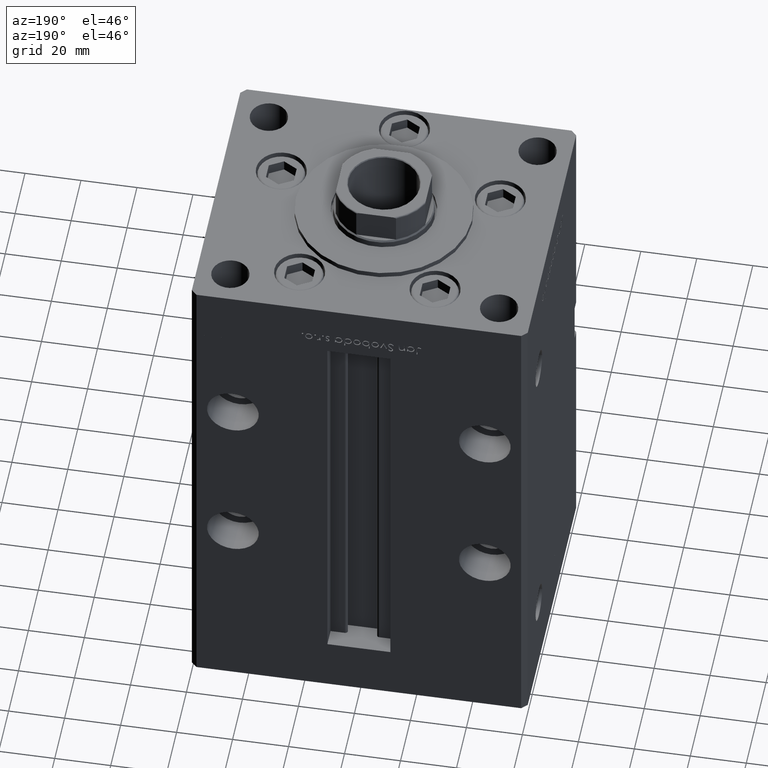
[diagram: clean part render]
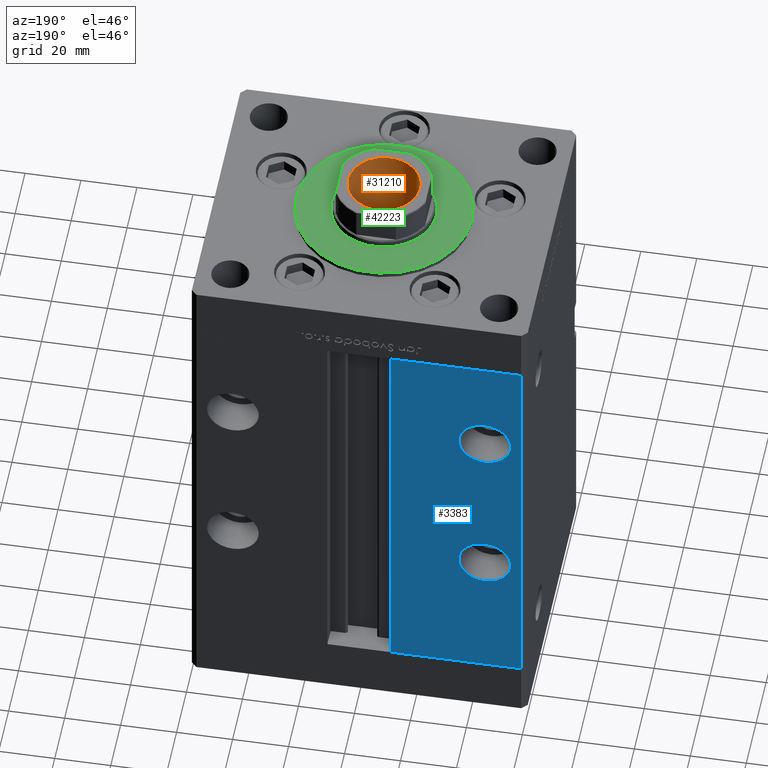
[diagram: same view with three faces highlighted in distinct colors, each labeled with its STEP entity id]
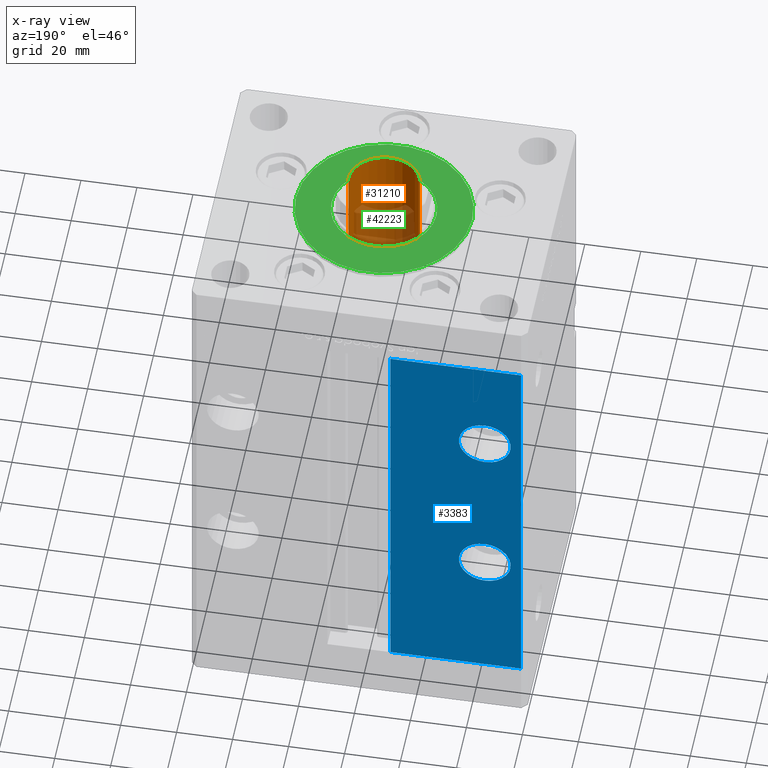
[diagram: x-ray of the same camera — body ghosted, the three highlighted faces saturated]
A machine part, auxiliary view with three faces highlighted in distinct colors.
The next image is the same camera in x-ray (body ghosted, the three faces saturated) — at least one of them is partly hidden behind the body in this view.
Their STEP definitions:

[orange] entity #31210 — the highlighted cylindrical surface (edge-blend (fillet) strip) has radius 12.75 mm, axis along (0, 0, 1).
#3804 = DIRECTION ( 'NONE',  ( -0.000000000000000000, -0.000000000000000000, 1.000000000000000000 ) ) ;
#7066 = VERTEX_POINT ( 'NONE', #27564 ) ;
#7113 = AXIS2_PLACEMENT_3D ( 'NONE', #18196, #35351, #18462 ) ;
#8938 = EDGE_CURVE ( 'NONE', #38517, #29832, #38066, .T. ) ;
#9149 = DIRECTION ( 'NONE',  ( -0.000000000000000000, -0.000000000000000000, 1.000000000000000000 ) ) ;
#10239 = DIRECTION ( 'NONE',  ( 1.000000000000000000, 0.000000000000000000, 0.000000000000000000 ) ) ;
#10362 = VERTEX_POINT ( 'NONE', #35427 ) ;
#13350 = EDGE_CURVE ( 'NONE', #29832, #7066, #30607, .T. ) ;
#13519 = VECTOR ( 'NONE', #50778, 1000.000000000000000 ) ;
#17202 = CARTESIAN_POINT ( 'NONE',  ( 12.74999999999999467, 0.000000000000000000, 169.2500000000000000 ) ) ;
#18196 = CARTESIAN_POINT ( 'NONE',  ( 0.000000000000000000, 0.000000000000000000, 124.2500000000000142 ) ) ;
#18462 = DIRECTION ( 'NONE',  ( 1.000000000000000000, 0.000000000000000000, 0.000000000000000000 ) ) ;
#20471 = ORIENTED_EDGE ( 'NONE', *, *, #20627, .T. ) ;
#20627 = EDGE_CURVE ( 'NONE', #10362, #7066, #30604, .T. ) ;
#20699 = CARTESIAN_POINT ( 'NONE',  ( 12.74999999999999112, 0.000000000000000000, 124.2500000000000142 ) ) ;
#21179 = AXIS2_PLACEMENT_3D ( 'NONE', #47803, #51557, #10239 ) ;
#21378 = EDGE_LOOP ( 'NONE', ( #50435, #30696, #20471, #30135 ) ) ;
#21386 = EDGE_CURVE ( 'NONE', #38517, #10362, #45959, .T. ) ;
#24400 = VECTOR ( 'NONE', #9149, 1000.000000000000000 ) ;
#24998 = CYLINDRICAL_SURFACE ( 'NONE', #34423, 12.74999999999999467 ) ;
#25293 = CARTESIAN_POINT ( 'NONE',  ( -12.74999999999999112, 1.561424668912874125E-15, 124.2500000000000142 ) ) ;
#27564 = CARTESIAN_POINT ( 'NONE',  ( 12.74999999999999467, 0.000000000000000000, 168.9499999999999602 ) ) ;
#29832 = VERTEX_POINT ( 'NONE', #20699 ) ;
#30135 = ORIENTED_EDGE ( 'NONE', *, *, #13350, .F. ) ;
#30604 = CIRCLE ( 'NONE', #21179, 12.74999999999999467 ) ;
#30607 = LINE ( 'NONE', #17202, #24400 ) ;
#30696 = ORIENTED_EDGE ( 'NONE', *, *, #21386, .T. ) ;
#31210 = ADVANCED_FACE ( 'NONE', ( #36539 ), #24998, .F. ) ;
#32792 = CARTESIAN_POINT ( 'NONE',  ( 0.000000000000000000, 0.000000000000000000, 169.2500000000000000 ) ) ;
#33885 = CARTESIAN_POINT ( 'NONE',  ( -12.74999999999999467, 1.561424668912874519E-15, 169.2500000000000000 ) ) ;
#34423 = AXIS2_PLACEMENT_3D ( 'NONE', #32792, #3804, #40566 ) ;
#35351 = DIRECTION ( 'NONE',  ( -0.000000000000000000, -0.000000000000000000, 1.000000000000000000 ) ) ;
#35427 = CARTESIAN_POINT ( 'NONE',  ( -12.74999999999999467, 1.561424668912874519E-15, 168.9499999999999602 ) ) ;
#36539 = FACE_OUTER_BOUND ( 'NONE', #21378, .T. ) ;
#38066 = CIRCLE ( 'NONE', #7113, 12.74999999999999112 ) ;
#38517 = VERTEX_POINT ( 'NONE', #25293 ) ;
#40566 = DIRECTION ( 'NONE',  ( 1.000000000000000000, 0.000000000000000000, 0.000000000000000000 ) ) ;
#45959 = LINE ( 'NONE', #33885, #13519 ) ;
#47803 = CARTESIAN_POINT ( 'NONE',  ( 0.000000000000000000, 0.000000000000000000, 168.9499999999999602 ) ) ;
#50435 = ORIENTED_EDGE ( 'NONE', *, *, #8938, .F. ) ;
#50778 = DIRECTION ( 'NONE',  ( -0.000000000000000000, -0.000000000000000000, 1.000000000000000000 ) ) ;
#51557 = DIRECTION ( 'NONE',  ( 0.000000000000000000, 0.000000000000000000, 1.000000000000000000 ) ) ;

[blue] entity #3383 — the highlighted planar face has unit normal (0, -1, 0).
#131 = AXIS2_PLACEMENT_3D ( 'NONE', #20976, #49944, #8086 ) ;
#2008 = VECTOR ( 'NONE', #45275, 1000.000000000000000 ) ;
#3383 = ADVANCED_FACE ( 'NONE', ( #9535, #8747, #37985 ), #46298, .F. ) ;
#3960 = ORIENTED_EDGE ( 'NONE', *, *, #38135, .F. ) ;
#4118 = CARTESIAN_POINT ( 'NONE',  ( -11.24999999999999822, 51.00000000000000711, 148.5000000000000000 ) ) ;
#4275 = ORIENTED_EDGE ( 'NONE', *, *, #10828, .T. ) ;
#4709 = DIRECTION ( 'NONE',  ( 0.000000000000000000, 0.000000000000000000, 1.000000000000000000 ) ) ;
#4752 = CIRCLE ( 'NONE', #46746, 9.250000000000001776 ) ;
#4805 = VERTEX_POINT ( 'NONE', #17704 ) ;
#5185 = DIRECTION ( 'NONE',  ( -0.000000000000000000, -0.000000000000000000, -1.000000000000000000 ) ) ;
#6317 = CIRCLE ( 'NONE', #42298, 9.249999999999994671 ) ;
#7959 = LINE ( 'NONE', #52791, #24152 ) ;
#8086 = DIRECTION ( 'NONE',  ( 0.000000000000000000, 0.000000000000000000, 1.000000000000000000 ) ) ;
#8747 = FACE_BOUND ( 'NONE', #14917, .T. ) ;
#9197 = EDGE_CURVE ( 'NONE', #23352, #4805, #17538, .T. ) ;
#9289 = ORIENTED_EDGE ( 'NONE', *, *, #42871, .F. ) ;
#9297 = LINE ( 'NONE', #29434, #2008 ) ;
#9535 = FACE_BOUND ( 'NONE', #38469, .T. ) ;
#10828 = EDGE_CURVE ( 'NONE', #22260, #46263, #9297, .T. ) ;
#13514 = DIRECTION ( 'NONE',  ( -1.000000000000000000, 0.000000000000000000, 0.000000000000000000 ) ) ;
#13842 = CIRCLE ( 'NONE', #131, 9.250000000000001776 ) ;
#14917 = EDGE_LOOP ( 'NONE', ( #9289, #26005 ) ) ;
#15870 = CARTESIAN_POINT ( 'NONE',  ( -45.00000000000000000, 51.00000000000000711, 60.75000000000000000 ) ) ;
#17538 = LINE ( 'NONE', #33908, #50062 ) ;
#17704 = CARTESIAN_POINT ( 'NONE',  ( -57.99999999999999289, 51.00000000000000711, 0.000000000000000000 ) ) ;
#20976 = CARTESIAN_POINT ( 'NONE',  ( -45.00000000000000000, 51.00000000000000711, 51.50000000000000000 ) ) ;
#21619 = DIRECTION ( 'NONE',  ( 0.000000000000000000, -1.000000000000000000, 0.000000000000000000 ) ) ;
#22019 = DIRECTION ( 'NONE',  ( 0.000000000000000000, 1.000000000000000000, -0.000000000000000000 ) ) ;
#22260 = VERTEX_POINT ( 'NONE', #33176 ) ;
#23275 = CARTESIAN_POINT ( 'NONE',  ( -45.00000000000000000, 51.00000000000000711, 120.7500000000000000 ) ) ;
#23352 = VERTEX_POINT ( 'NONE', #26800 ) ;
#23361 = VERTEX_POINT ( 'NONE', #24365 ) ;
#23403 = VECTOR ( 'NONE', #5185, 1000.000000000000000 ) ;
#23580 = AXIS2_PLACEMENT_3D ( 'NONE', #43709, #43171, #47995 ) ;
#24152 = VECTOR ( 'NONE', #40704, 1000.000000000000000 ) ;
#24365 = CARTESIAN_POINT ( 'NONE',  ( -45.00000000000000000, 51.00000000000000711, 42.24999999999999289 ) ) ;
#26005 = ORIENTED_EDGE ( 'NONE', *, *, #31227, .F. ) ;
#26573 = DIRECTION ( 'NONE',  ( 0.000000000000000000, 0.000000000000000000, -1.000000000000000000 ) ) ;
#26800 = CARTESIAN_POINT ( 'NONE',  ( -11.24999999999999822, 51.00000000000000711, 0.000000000000000000 ) ) ;
#28125 = EDGE_LOOP ( 'NONE', ( #4275, #31020, #44228, #51668 ) ) ;
#29154 = DIRECTION ( 'NONE',  ( 0.000000000000000000, -0.000000000000000000, -1.000000000000000000 ) ) ;
#29434 = CARTESIAN_POINT ( 'NONE',  ( -11.24999999999999822, 51.00000000000000711, 148.5000000000000000 ) ) ;
#29521 = VERTEX_POINT ( 'NONE', #23275 ) ;
#30939 = EDGE_CURVE ( 'NONE', #22260, #4805, #41700, .T. ) ;
#31020 = ORIENTED_EDGE ( 'NONE', *, *, #31752, .F. ) ;
#31227 = EDGE_CURVE ( 'NONE', #23361, #37013, #13842, .T. ) ;
#31296 = VERTEX_POINT ( 'NONE', #34109 ) ;
#31752 = EDGE_CURVE ( 'NONE', #23352, #46263, #7959, .T. ) ;
#32164 = CIRCLE ( 'NONE', #23580, 9.249999999999994671 ) ;
#33176 = CARTESIAN_POINT ( 'NONE',  ( -57.99999999999999289, 51.00000000000000711, 148.5000000000000000 ) ) ;
#33818 = ORIENTED_EDGE ( 'NONE', *, *, #41586, .F. ) ;
#33908 = CARTESIAN_POINT ( 'NONE',  ( -11.24999999999999822, 51.00000000000000711, 0.000000000000000000 ) ) ;
#34109 = CARTESIAN_POINT ( 'NONE',  ( -45.00000000000000000, 51.00000000000000711, 102.2500000000000142 ) ) ;
#37013 = VERTEX_POINT ( 'NONE', #15870 ) ;
#37985 = FACE_OUTER_BOUND ( 'NONE', #28125, .T. ) ;
#38135 = EDGE_CURVE ( 'NONE', #29521, #31296, #6317, .T. ) ;
#38469 = EDGE_LOOP ( 'NONE', ( #3960, #33818 ) ) ;
#40479 = AXIS2_PLACEMENT_3D ( 'NONE', #42275, #21619, #29154 ) ;
#40704 = DIRECTION ( 'NONE',  ( -0.000000000000000000, -0.000000000000000000, 1.000000000000000000 ) ) ;
#41586 = EDGE_CURVE ( 'NONE', #31296, #29521, #32164, .T. ) ;
#41700 = LINE ( 'NONE', #48945, #23403 ) ;
#42275 = CARTESIAN_POINT ( 'NONE',  ( -11.24999999999999822, 51.00000000000000711, 148.5000000000000000 ) ) ;
#42298 = AXIS2_PLACEMENT_3D ( 'NONE', #50721, #22019, #26573 ) ;
#42871 = EDGE_CURVE ( 'NONE', #37013, #23361, #4752, .T. ) ;
#43171 = DIRECTION ( 'NONE',  ( 0.000000000000000000, 1.000000000000000000, -0.000000000000000000 ) ) ;
#43709 = CARTESIAN_POINT ( 'NONE',  ( -45.00000000000000000, 51.00000000000000711, 111.5000000000000000 ) ) ;
#44228 = ORIENTED_EDGE ( 'NONE', *, *, #9197, .T. ) ;
#45275 = DIRECTION ( 'NONE',  ( 1.000000000000000000, 0.000000000000000000, 0.000000000000000000 ) ) ;
#45499 = CARTESIAN_POINT ( 'NONE',  ( -45.00000000000000000, 51.00000000000000711, 51.50000000000000000 ) ) ;
#46263 = VERTEX_POINT ( 'NONE', #4118 ) ;
#46298 = PLANE ( 'NONE',  #40479 ) ;
#46746 = AXIS2_PLACEMENT_3D ( 'NONE', #45499, #50059, #4709 ) ;
#47995 = DIRECTION ( 'NONE',  ( 0.000000000000000000, 0.000000000000000000, -1.000000000000000000 ) ) ;
#48945 = CARTESIAN_POINT ( 'NONE',  ( -57.99999999999999289, 51.00000000000000711, 148.5000000000000000 ) ) ;
#49944 = DIRECTION ( 'NONE',  ( 0.000000000000000000, 1.000000000000000000, 0.000000000000000000 ) ) ;
#50059 = DIRECTION ( 'NONE',  ( 0.000000000000000000, 1.000000000000000000, 0.000000000000000000 ) ) ;
#50062 = VECTOR ( 'NONE', #13514, 1000.000000000000000 ) ;
#50721 = CARTESIAN_POINT ( 'NONE',  ( -45.00000000000000000, 51.00000000000000711, 111.5000000000000000 ) ) ;
#51668 = ORIENTED_EDGE ( 'NONE', *, *, #30939, .F. ) ;
#52791 = CARTESIAN_POINT ( 'NONE',  ( -11.24999999999999822, 51.00000000000000711, 0.000000000000000000 ) ) ;

[green] entity #42223 — the highlighted planar face has unit normal (0, 0, 1).
#30 = EDGE_CURVE ( 'NONE', #38821, #4374, #34395, .T. ) ;
#504 = DIRECTION ( 'NONE',  ( 0.000000000000000000, 0.000000000000000000, 1.000000000000000000 ) ) ;
#517 = CARTESIAN_POINT ( 'NONE',  ( 0.000000000000000000, -6.938893903907228378E-15, 2.000000000000000000 ) ) ;
#2604 = DIRECTION ( 'NONE',  ( 1.000000000000000000, 0.000000000000000000, 0.000000000000000000 ) ) ;
#3052 = VERTEX_POINT ( 'NONE', #19353 ) ;
#4374 = VERTEX_POINT ( 'NONE', #10900 ) ;
#6487 = FACE_OUTER_BOUND ( 'NONE', #49237, .T. ) ;
#7126 = ORIENTED_EDGE ( 'NONE', *, *, #28339, .F. ) ;
#9324 = DIRECTION ( 'NONE',  ( 1.000000000000000000, 0.000000000000000000, 0.000000000000000000 ) ) ;
#10900 = CARTESIAN_POINT ( 'NONE',  ( 31.50000000000000000, -3.081256486593065689E-15, 2.000000000000000000 ) ) ;
#15334 = ORIENTED_EDGE ( 'NONE', *, *, #34629, .F. ) ;
#15798 = ORIENTED_EDGE ( 'NONE', *, *, #16715, .T. ) ;
#15866 = DIRECTION ( 'NONE',  ( 1.000000000000000000, 0.000000000000000000, -0.000000000000000000 ) ) ;
#15889 = CIRCLE ( 'NONE', #45877, 31.50000000000000000 ) ;
#16715 = EDGE_CURVE ( 'NONE', #4374, #38821, #15889, .T. ) ;
#19128 = CARTESIAN_POINT ( 'NONE',  ( -18.75000000000000355, -4.642681155505941194E-15, 2.000000000000000000 ) ) ;
#19353 = CARTESIAN_POINT ( 'NONE',  ( 18.75000000000000355, -6.938893903907228378E-15, 2.000000000000000000 ) ) ;
#19893 = DIRECTION ( 'NONE',  ( 0.000000000000000000, 0.000000000000000000, 1.000000000000000000 ) ) ;
#21633 = ORIENTED_EDGE ( 'NONE', *, *, #30, .T. ) ;
#22460 = AXIS2_PLACEMENT_3D ( 'NONE', #52501, #26304, #47202 ) ;
#22870 = PLANE ( 'NONE',  #27023 ) ;
#24094 = AXIS2_PLACEMENT_3D ( 'NONE', #37268, #504, #2604 ) ;
#24965 = CARTESIAN_POINT ( 'NONE',  ( -31.50000000000000000, -6.938893903907228378E-15, 2.000000000000000000 ) ) ;
#25209 = DIRECTION ( 'NONE',  ( 1.000000000000000000, 0.000000000000000000, 0.000000000000000000 ) ) ;
#26304 = DIRECTION ( 'NONE',  ( 0.000000000000000000, 0.000000000000000000, 1.000000000000000000 ) ) ;
#27023 = AXIS2_PLACEMENT_3D ( 'NONE', #31199, #19893, #15866 ) ;
#28339 = EDGE_CURVE ( 'NONE', #29723, #3052, #38738, .T. ) ;
#29714 = EDGE_LOOP ( 'NONE', ( #15334, #7126 ) ) ;
#29723 = VERTEX_POINT ( 'NONE', #19128 ) ;
#31199 = CARTESIAN_POINT ( 'NONE',  ( 0.000000000000000000, -6.938893903907228378E-15, 2.000000000000000000 ) ) ;
#34269 = DIRECTION ( 'NONE',  ( 0.000000000000000000, 0.000000000000000000, 1.000000000000000000 ) ) ;
#34395 = CIRCLE ( 'NONE', #24094, 31.50000000000000000 ) ;
#34629 = EDGE_CURVE ( 'NONE', #3052, #29723, #50815, .T. ) ;
#36253 = FACE_BOUND ( 'NONE', #29714, .T. ) ;
#37268 = CARTESIAN_POINT ( 'NONE',  ( 0.000000000000000000, -6.938893903907228378E-15, 2.000000000000000000 ) ) ;
#38738 = CIRCLE ( 'NONE', #22460, 18.75000000000000355 ) ;
#38821 = VERTEX_POINT ( 'NONE', #24965 ) ;
#42223 = ADVANCED_FACE ( 'NONE', ( #36253, #6487 ), #22870, .T. ) ;
#45877 = AXIS2_PLACEMENT_3D ( 'NONE', #517, #53122, #25209 ) ;
#47202 = DIRECTION ( 'NONE',  ( 1.000000000000000000, 0.000000000000000000, 0.000000000000000000 ) ) ;
#47391 = AXIS2_PLACEMENT_3D ( 'NONE', #50636, #34269, #9324 ) ;
#49237 = EDGE_LOOP ( 'NONE', ( #21633, #15798 ) ) ;
#50636 = CARTESIAN_POINT ( 'NONE',  ( 0.000000000000000000, -6.938893903907228378E-15, 2.000000000000000000 ) ) ;
#50815 = CIRCLE ( 'NONE', #47391, 18.75000000000000355 ) ;
#52501 = CARTESIAN_POINT ( 'NONE',  ( 0.000000000000000000, -6.938893903907228378E-15, 2.000000000000000000 ) ) ;
#53122 = DIRECTION ( 'NONE',  ( 0.000000000000000000, 0.000000000000000000, 1.000000000000000000 ) ) ;